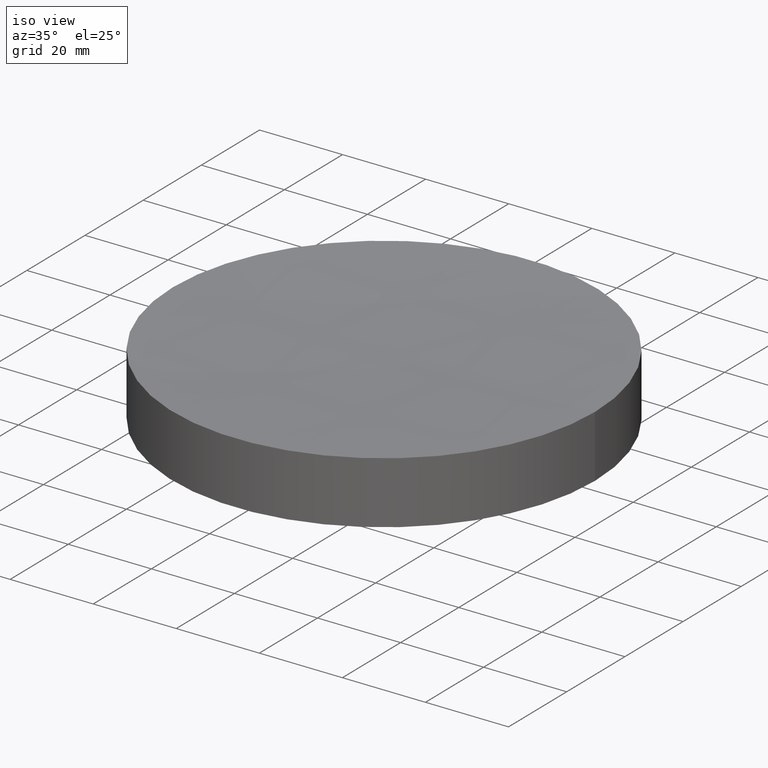
[diagram: clean part render]
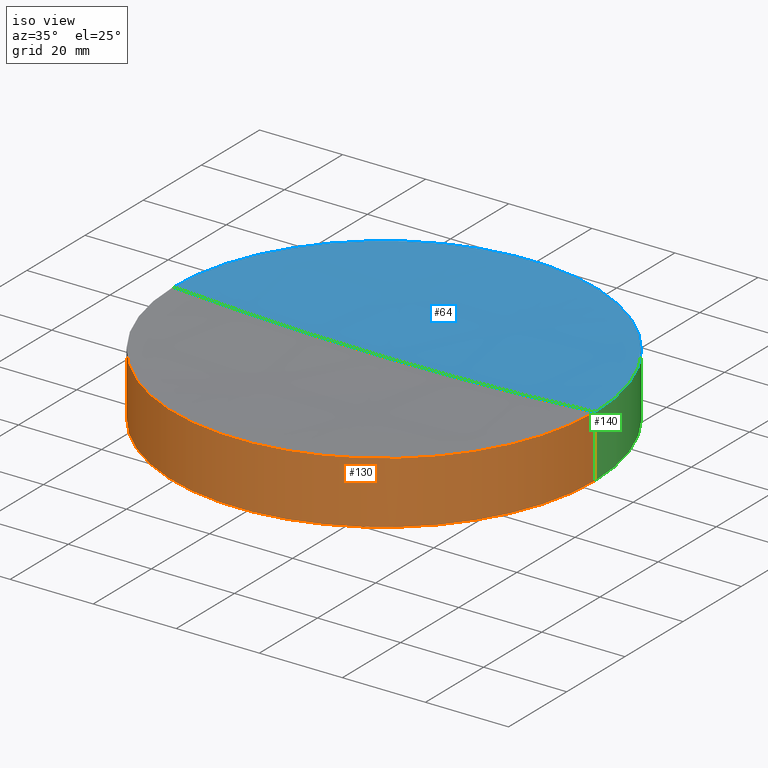
[diagram: same view with three faces highlighted in distinct colors, each labeled with its STEP entity id]
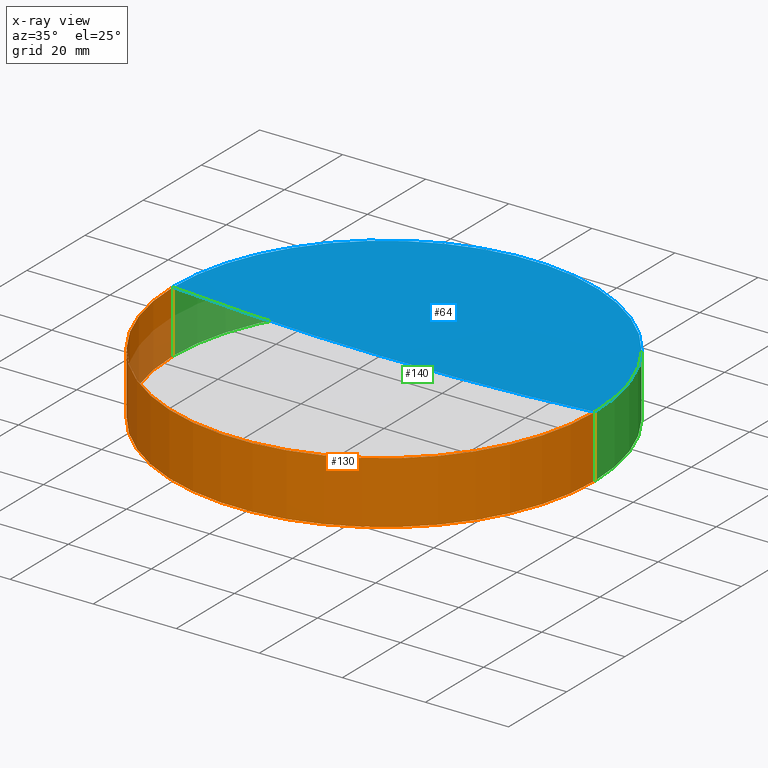
[diagram: x-ray of the same camera — body ghosted, the three highlighted faces saturated]
A machine part, iso view with three faces highlighted in distinct colors.
The next image is the same camera in x-ray (body ghosted, the three faces saturated) — at least one of them is partly hidden behind the body in this view.
Their STEP definitions:

[orange] entity #130 — the highlighted cylindrical surface (partial cylindrical patch) has radius 50.8 mm, axis along (-0, -0, -1).
#4 = AXIS2_PLACEMENT_3D ( 'NONE', #156, #106, #155 ) ;
#8 = DIRECTION ( 'NONE',  ( -0.000000000000000000, -0.000000000000000000, -1.000000000000000000 ) ) ;
#22 = EDGE_LOOP ( 'NONE', ( #188, #24, #135, #40 ) ) ;
#23 = AXIS2_PLACEMENT_3D ( 'NONE', #168, #45, #171 ) ;
#24 = ORIENTED_EDGE ( 'NONE', *, *, #36, .T. ) ;
#27 = CARTESIAN_POINT ( 'NONE',  ( 50.79999999999999716, 6.221205739668553730E-15, 0.000000000000000000 ) ) ;
#32 = CARTESIAN_POINT ( 'NONE',  ( 50.80000000000032401, 6.221205739668593962E-15, 15.00000000000001421 ) ) ;
#36 = EDGE_CURVE ( 'NONE', #192, #84, #167, .T. ) ;
#40 = ORIENTED_EDGE ( 'NONE', *, *, #123, .T. ) ;
#41 = VECTOR ( 'NONE', #8, 1000.000000000000000 ) ;
#43 = CARTESIAN_POINT ( 'NONE',  ( 0.000000000000000000, 0.000000000000000000, 0.000000000000000000 ) ) ;
#45 = DIRECTION ( 'NONE',  ( -0.000000000000000000, -0.000000000000000000, -1.000000000000000000 ) ) ;
#56 = CYLINDRICAL_SURFACE ( 'NONE', #4, 50.79999999999999716 ) ;
#60 = CIRCLE ( 'NONE', #143, 50.79999999999999716 ) ;
#61 = DIRECTION ( 'NONE',  ( 0.000000000000000000, 0.000000000000000000, 1.000000000000000000 ) ) ;
#69 = DIRECTION ( 'NONE',  ( 1.000000000000000000, 0.000000000000000000, 0.000000000000000000 ) ) ;
#71 = DIRECTION ( 'NONE',  ( -0.000000000000000000, -0.000000000000000000, -1.000000000000000000 ) ) ;
#84 = VERTEX_POINT ( 'NONE', #94 ) ;
#87 = VERTEX_POINT ( 'NONE', #141 ) ;
#92 = CARTESIAN_POINT ( 'NONE',  ( -50.79999999999999716, 0.000000000000000000, 15.00000000000000000 ) ) ;
#93 = EDGE_CURVE ( 'NONE', #192, #102, #184, .T. ) ;
#94 = CARTESIAN_POINT ( 'NONE',  ( -50.80000000000013927, 0.000000000000000000, 15.00000000000001421 ) ) ;
#102 = VERTEX_POINT ( 'NONE', #27 ) ;
#106 = DIRECTION ( 'NONE',  ( -0.000000000000000000, -0.000000000000000000, -1.000000000000000000 ) ) ;
#121 = CARTESIAN_POINT ( 'NONE',  ( 50.79999999999999716, 6.221205739668553730E-15, 15.00000000000000000 ) ) ;
#122 = LINE ( 'NONE', #92, #150 ) ;
#123 = EDGE_CURVE ( 'NONE', #87, #102, #60, .T. ) ;
#124 = FACE_OUTER_BOUND ( 'NONE', #22, .T. ) ;
#130 = ADVANCED_FACE ( 'NONE', ( #124 ), #56, .T. ) ;
#135 = ORIENTED_EDGE ( 'NONE', *, *, #166, .T. ) ;
#141 = CARTESIAN_POINT ( 'NONE',  ( -50.79999999999999716, 0.000000000000000000, 0.000000000000000000 ) ) ;
#143 = AXIS2_PLACEMENT_3D ( 'NONE', #43, #61, #69 ) ;
#150 = VECTOR ( 'NONE', #71, 1000.000000000000000 ) ;
#155 = DIRECTION ( 'NONE',  ( -1.000000000000000000, 0.000000000000000000, 0.000000000000000000 ) ) ;
#156 = CARTESIAN_POINT ( 'NONE',  ( 0.000000000000000000, 0.000000000000000000, 15.00000000000000000 ) ) ;
#166 = EDGE_CURVE ( 'NONE', #84, #87, #122, .T. ) ;
#167 = CIRCLE ( 'NONE', #23, 50.80000000000022453 ) ;
#168 = CARTESIAN_POINT ( 'NONE',  ( 9.714451465470119729E-14, 0.000000000000000000, 15.00000000000001421 ) ) ;
#171 = DIRECTION ( 'NONE',  ( 1.000000000000000000, 0.000000000000000000, 0.000000000000000000 ) ) ;
#184 = LINE ( 'NONE', #121, #41 ) ;
#188 = ORIENTED_EDGE ( 'NONE', *, *, #93, .F. ) ;
#192 = VERTEX_POINT ( 'NONE', #32 ) ;

[blue] entity #64 — the highlighted spherical surface has radius 800 mm.
#12 = AXIS2_PLACEMENT_3D ( 'NONE', #59, #182, #157 ) ;
#26 = DIRECTION ( 'NONE',  ( 1.000000000000000000, 0.000000000000000000, 0.000000000000000000 ) ) ;
#28 = EDGE_CURVE ( 'NONE', #84, #176, #86, .T. ) ;
#29 = AXIS2_PLACEMENT_3D ( 'NONE', #172, #47, #197 ) ;
#32 = CARTESIAN_POINT ( 'NONE',  ( 50.80000000000032401, 6.221205739668593962E-15, 15.00000000000001421 ) ) ;
#39 = ORIENTED_EDGE ( 'NONE', *, *, #28, .T. ) ;
#47 = DIRECTION ( 'NONE',  ( 0.000000000000000000, 1.000000000000000000, -0.000000000000000000 ) ) ;
#57 = SPHERICAL_SURFACE ( 'NONE', #115, 800.0000000000000000 ) ;
#59 = CARTESIAN_POINT ( 'NONE',  ( 9.714451465470119729E-14, 0.000000000000000000, 813.3854708096836248 ) ) ;
#64 = ADVANCED_FACE ( 'NONE', ( #120 ), #57, .F. ) ;
#73 = CARTESIAN_POINT ( 'NONE',  ( 1.461303866205953070E-13, 0.000000000000000000, 13.38547080968355374 ) ) ;
#83 = EDGE_CURVE ( 'NONE', #84, #192, #158, .T. ) ;
#84 = VERTEX_POINT ( 'NONE', #94 ) ;
#86 = CIRCLE ( 'NONE', #12, 800.0000000000000000 ) ;
#89 = DIRECTION ( 'NONE',  ( 0.000000000000000000, -1.000000000000000000, -0.000000000000000000 ) ) ;
#94 = CARTESIAN_POINT ( 'NONE',  ( -50.80000000000013927, 0.000000000000000000, 15.00000000000001421 ) ) ;
#95 = AXIS2_PLACEMENT_3D ( 'NONE', #142, #183, #26 ) ;
#111 = CARTESIAN_POINT ( 'NONE',  ( 9.714451465470119729E-14, 0.000000000000000000, 813.3854708096836248 ) ) ;
#115 = AXIS2_PLACEMENT_3D ( 'NONE', #111, #89, #169 ) ;
#120 = FACE_OUTER_BOUND ( 'NONE', #193, .T. ) ;
#132 = CIRCLE ( 'NONE', #29, 800.0000000000001137 ) ;
#142 = CARTESIAN_POINT ( 'NONE',  ( 9.714451465470119729E-14, 0.000000000000000000, 15.00000000000001421 ) ) ;
#151 = ORIENTED_EDGE ( 'NONE', *, *, #191, .F. ) ;
#157 = DIRECTION ( 'NONE',  ( 1.000000000000000000, 1.224646799147353207E-16, 0.000000000000000000 ) ) ;
#158 = CIRCLE ( 'NONE', #95, 50.80000000000022453 ) ;
#165 = ORIENTED_EDGE ( 'NONE', *, *, #83, .F. ) ;
#169 = DIRECTION ( 'NONE',  ( 1.000000000000000000, 0.000000000000000000, 0.000000000000000000 ) ) ;
#172 = CARTESIAN_POINT ( 'NONE',  ( 9.714451465470119729E-14, 0.000000000000000000, 813.3854708096836248 ) ) ;
#176 = VERTEX_POINT ( 'NONE', #73 ) ;
#182 = DIRECTION ( 'NONE',  ( 1.224646799147353207E-16, -1.000000000000000000, 0.000000000000000000 ) ) ;
#183 = DIRECTION ( 'NONE',  ( -0.000000000000000000, -0.000000000000000000, -1.000000000000000000 ) ) ;
#191 = EDGE_CURVE ( 'NONE', #192, #176, #132, .T. ) ;
#192 = VERTEX_POINT ( 'NONE', #32 ) ;
#193 = EDGE_LOOP ( 'NONE', ( #165, #39, #151 ) ) ;
#197 = DIRECTION ( 'NONE',  ( 0.000000000000000000, 0.000000000000000000, 1.000000000000000000 ) ) ;

[green] entity #140 — the highlighted cylindrical surface (partial cylindrical patch) has radius 50.8 mm, axis along (-0, -0, -1).
#8 = DIRECTION ( 'NONE',  ( -0.000000000000000000, -0.000000000000000000, -1.000000000000000000 ) ) ;
#9 = DIRECTION ( 'NONE',  ( -0.000000000000000000, -0.000000000000000000, -1.000000000000000000 ) ) ;
#10 = CARTESIAN_POINT ( 'NONE',  ( 0.000000000000000000, 0.000000000000000000, 0.000000000000000000 ) ) ;
#11 = DIRECTION ( 'NONE',  ( 1.000000000000000000, 0.000000000000000000, 0.000000000000000000 ) ) ;
#19 = ORIENTED_EDGE ( 'NONE', *, *, #166, .F. ) ;
#26 = DIRECTION ( 'NONE',  ( 1.000000000000000000, 0.000000000000000000, 0.000000000000000000 ) ) ;
#27 = CARTESIAN_POINT ( 'NONE',  ( 50.79999999999999716, 6.221205739668553730E-15, 0.000000000000000000 ) ) ;
#30 = DIRECTION ( 'NONE',  ( -1.000000000000000000, 0.000000000000000000, 0.000000000000000000 ) ) ;
#32 = CARTESIAN_POINT ( 'NONE',  ( 50.80000000000032401, 6.221205739668593962E-15, 15.00000000000001421 ) ) ;
#33 = CIRCLE ( 'NONE', #104, 50.79999999999999716 ) ;
#41 = VECTOR ( 'NONE', #8, 1000.000000000000000 ) ;
#55 = ORIENTED_EDGE ( 'NONE', *, *, #83, .T. ) ;
#71 = DIRECTION ( 'NONE',  ( -0.000000000000000000, -0.000000000000000000, -1.000000000000000000 ) ) ;
#74 = DIRECTION ( 'NONE',  ( 0.000000000000000000, 0.000000000000000000, 1.000000000000000000 ) ) ;
#81 = ORIENTED_EDGE ( 'NONE', *, *, #93, .T. ) ;
#83 = EDGE_CURVE ( 'NONE', #84, #192, #158, .T. ) ;
#84 = VERTEX_POINT ( 'NONE', #94 ) ;
#87 = VERTEX_POINT ( 'NONE', #141 ) ;
#91 = CYLINDRICAL_SURFACE ( 'NONE', #179, 50.79999999999999716 ) ;
#92 = CARTESIAN_POINT ( 'NONE',  ( -50.79999999999999716, 0.000000000000000000, 15.00000000000000000 ) ) ;
#93 = EDGE_CURVE ( 'NONE', #192, #102, #184, .T. ) ;
#94 = CARTESIAN_POINT ( 'NONE',  ( -50.80000000000013927, 0.000000000000000000, 15.00000000000001421 ) ) ;
#95 = AXIS2_PLACEMENT_3D ( 'NONE', #142, #183, #26 ) ;
#102 = VERTEX_POINT ( 'NONE', #27 ) ;
#104 = AXIS2_PLACEMENT_3D ( 'NONE', #10, #74, #11 ) ;
#118 = ORIENTED_EDGE ( 'NONE', *, *, #161, .T. ) ;
#121 = CARTESIAN_POINT ( 'NONE',  ( 50.79999999999999716, 6.221205739668553730E-15, 15.00000000000000000 ) ) ;
#122 = LINE ( 'NONE', #92, #150 ) ;
#140 = ADVANCED_FACE ( 'NONE', ( #154 ), #91, .T. ) ;
#141 = CARTESIAN_POINT ( 'NONE',  ( -50.79999999999999716, 0.000000000000000000, 0.000000000000000000 ) ) ;
#142 = CARTESIAN_POINT ( 'NONE',  ( 9.714451465470119729E-14, 0.000000000000000000, 15.00000000000001421 ) ) ;
#150 = VECTOR ( 'NONE', #71, 1000.000000000000000 ) ;
#154 = FACE_OUTER_BOUND ( 'NONE', #190, .T. ) ;
#158 = CIRCLE ( 'NONE', #95, 50.80000000000022453 ) ;
#161 = EDGE_CURVE ( 'NONE', #102, #87, #33, .T. ) ;
#166 = EDGE_CURVE ( 'NONE', #84, #87, #122, .T. ) ;
#170 = CARTESIAN_POINT ( 'NONE',  ( 0.000000000000000000, 0.000000000000000000, 15.00000000000000000 ) ) ;
#179 = AXIS2_PLACEMENT_3D ( 'NONE', #170, #9, #30 ) ;
#183 = DIRECTION ( 'NONE',  ( -0.000000000000000000, -0.000000000000000000, -1.000000000000000000 ) ) ;
#184 = LINE ( 'NONE', #121, #41 ) ;
#190 = EDGE_LOOP ( 'NONE', ( #55, #81, #118, #19 ) ) ;
#192 = VERTEX_POINT ( 'NONE', #32 ) ;